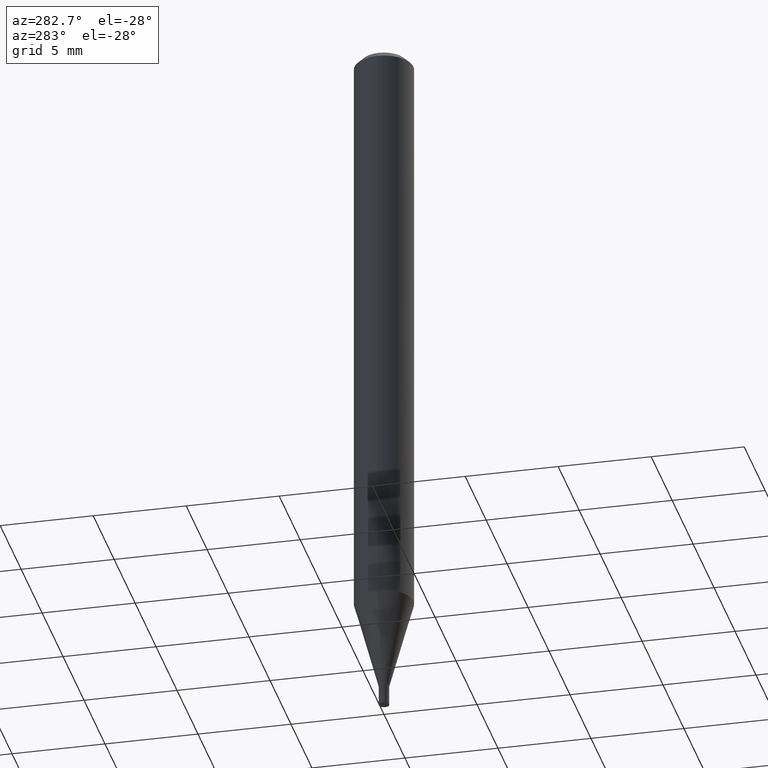
[diagram: clean part render]
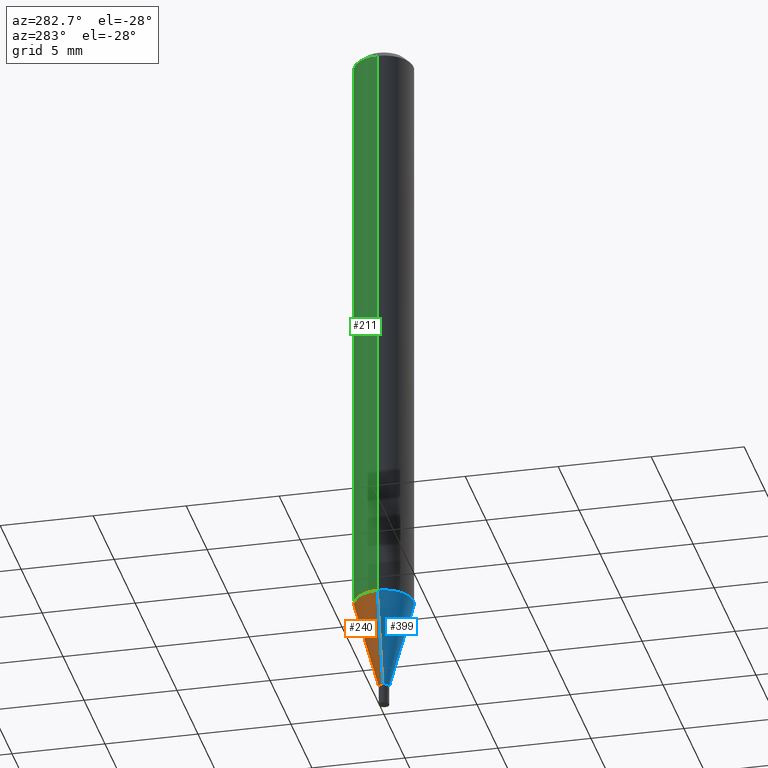
[diagram: same view with three faces highlighted in distinct colors, each labeled with its STEP entity id]
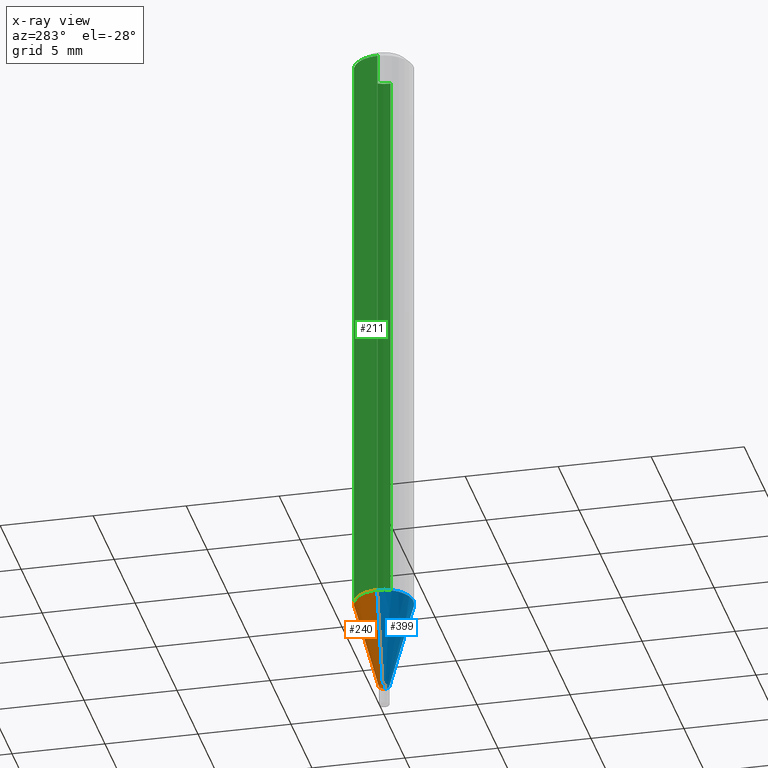
[diagram: x-ray of the same camera — body ghosted, the three highlighted faces saturated]
A machine part, auxiliary view with three faces highlighted in distinct colors.
The next image is the same camera in x-ray (body ghosted, the three faces saturated) — at least one of them is partly hidden behind the body in this view.
Their STEP definitions:

[orange] entity #240 — the highlighted conical surface has half-angle 15 deg.
#13 = VECTOR ( 'NONE', #171, 39.37007874015747433 ) ;
#24 = FACE_OUTER_BOUND ( 'NONE', #284, .T. ) ;
#27 = CARTESIAN_POINT ( 'NONE',  ( -0.01099999999999992130, -5.008928609760852258E-15, -1.457000000000000073 ) ) ;
#50 = CIRCLE ( 'NONE', #330, 0.01099999999999992130 ) ;
#51 = CONICAL_SURFACE ( 'NONE', #118, 0.01099999999999992130, 0.2617993877991500740 ) ;
#74 = ORIENTED_EDGE ( 'NONE', *, *, #415, .T. ) ;
#79 = EDGE_CURVE ( 'NONE', #422, #297, #443, .T. ) ;
#113 = ORIENTED_EDGE ( 'NONE', *, *, #338, .T. ) ;
#114 = VERTEX_POINT ( 'NONE', #306 ) ;
#118 = AXIS2_PLACEMENT_3D ( 'NONE', #169, #308, #281 ) ;
#119 = DIRECTION ( 'NONE',  ( 0.2588190451025213501, 1.565188264969621968E-15, 0.9659258262890682012 ) ) ;
#148 = ORIENTED_EDGE ( 'NONE', *, *, #79, .F. ) ;
#169 = CARTESIAN_POINT ( 'NONE',  ( 3.563048050611744147E-29, -5.087088310694462559E-15, -1.457000000000000073 ) ) ;
#171 = DIRECTION ( 'NONE',  ( -0.2588190451025213501, 5.211531920934551042E-15, 0.9659258262890682012 ) ) ;
#190 = VECTOR ( 'NONE', #119, 39.37007874015747433 ) ;
#204 = LINE ( 'NONE', #27, #13 ) ;
#220 = CARTESIAN_POINT ( 'NONE',  ( 0.01099999999999992130, -5.163900900149011871E-15, -1.457000000000000073 ) ) ;
#226 = ORIENTED_EDGE ( 'NONE', *, *, #375, .F. ) ;
#240 = ADVANCED_FACE ( 'NONE', ( #24 ), #51, .T. ) ;
#244 = AXIS2_PLACEMENT_3D ( 'NONE', #406, #369, #302 ) ;
#251 = DIRECTION ( 'NONE',  ( -2.445468806185136597E-29, 3.491481338843145583E-15, 1.000000000000000000 ) ) ;
#269 = CARTESIAN_POINT ( 'NONE',  ( -0.06250000000000000000, -3.971934234706977480E-15, -1.264799383410203149 ) ) ;
#281 = DIRECTION ( 'NONE',  ( 1.000000000000000000, -6.982962677686295110E-15, 0.000000000000000000 ) ) ;
#284 = EDGE_LOOP ( 'NONE', ( #74, #113, #148, #226 ) ) ;
#297 = VERTEX_POINT ( 'NONE', #269 ) ;
#300 = VERTEX_POINT ( 'NONE', #409 ) ;
#302 = DIRECTION ( 'NONE',  ( 1.000000000000000000, -6.982962677686262766E-15, 0.000000000000000000 ) ) ;
#306 = CARTESIAN_POINT ( 'NONE',  ( -0.01099999999999992130, -4.490431422233914869E-15, -1.457000000000000073 ) ) ;
#308 = DIRECTION ( 'NONE',  ( -2.445468806185136597E-29, 3.491481338843145583E-15, 1.000000000000000000 ) ) ;
#320 = DIRECTION ( 'NONE',  ( 1.000000000000000000, -6.982962677686295110E-15, 0.000000000000000000 ) ) ;
#330 = AXIS2_PLACEMENT_3D ( 'NONE', #436, #251, #320 ) ;
#338 = EDGE_CURVE ( 'NONE', #114, #297, #204, .T. ) ;
#369 = DIRECTION ( 'NONE',  ( -2.445468806185136597E-29, 3.491481338843145583E-15, 1.000000000000000000 ) ) ;
#375 = EDGE_CURVE ( 'NONE', #300, #422, #398, .T. ) ;
#398 = LINE ( 'NONE', #220, #190 ) ;
#406 = CARTESIAN_POINT ( 'NONE',  ( 3.093027438211846075E-29, -4.416023444557040885E-15, -1.264799383410203149 ) ) ;
#409 = CARTESIAN_POINT ( 'NONE',  ( 0.01099999999999992130, -5.163900900149011871E-15, -1.457000000000000073 ) ) ;
#415 = EDGE_CURVE ( 'NONE', #300, #114, #50, .T. ) ;
#422 = VERTEX_POINT ( 'NONE', #466 ) ;
#436 = CARTESIAN_POINT ( 'NONE',  ( 3.563048050611744147E-29, -5.087088310694462559E-15, -1.457000000000000073 ) ) ;
#443 = CIRCLE ( 'NONE', #244, 0.06250000000000000000 ) ;
#466 = CARTESIAN_POINT ( 'NONE',  ( 0.06250000000000000000, -4.852458611912431766E-15, -1.264799383410203149 ) ) ;

[blue] entity #399 — the highlighted conical surface has half-angle 15 deg.
#13 = VECTOR ( 'NONE', #171, 39.37007874015747433 ) ;
#27 = CARTESIAN_POINT ( 'NONE',  ( -0.01099999999999992130, -5.008928609760852258E-15, -1.457000000000000073 ) ) ;
#43 = AXIS2_PLACEMENT_3D ( 'NONE', #196, #134, #261 ) ;
#47 = EDGE_CURVE ( 'NONE', #114, #300, #401, .T. ) ;
#67 = DIRECTION ( 'NONE',  ( 1.000000000000000000, -6.982962677686262766E-15, 0.000000000000000000 ) ) ;
#81 = AXIS2_PLACEMENT_3D ( 'NONE', #379, #108, #67 ) ;
#88 = FACE_OUTER_BOUND ( 'NONE', #155, .T. ) ;
#108 = DIRECTION ( 'NONE',  ( -2.445468806185136597E-29, 3.491481338843145583E-15, 1.000000000000000000 ) ) ;
#114 = VERTEX_POINT ( 'NONE', #306 ) ;
#119 = DIRECTION ( 'NONE',  ( 0.2588190451025213501, 1.565188264969621968E-15, 0.9659258262890682012 ) ) ;
#121 = DIRECTION ( 'NONE',  ( 1.000000000000000000, -6.982962677686295110E-15, 0.000000000000000000 ) ) ;
#134 = DIRECTION ( 'NONE',  ( -2.445468806185136597E-29, 3.491481338843145583E-15, 1.000000000000000000 ) ) ;
#155 = EDGE_LOOP ( 'NONE', ( #386, #396, #181, #437 ) ) ;
#161 = CONICAL_SURFACE ( 'NONE', #234, 0.01099999999999992130, 0.2617993877991500740 ) ;
#171 = DIRECTION ( 'NONE',  ( -0.2588190451025213501, 5.211531920934551042E-15, 0.9659258262890682012 ) ) ;
#181 = ORIENTED_EDGE ( 'NONE', *, *, #375, .T. ) ;
#190 = VECTOR ( 'NONE', #119, 39.37007874015747433 ) ;
#196 = CARTESIAN_POINT ( 'NONE',  ( 3.563048050611744147E-29, -5.087088310694462559E-15, -1.457000000000000073 ) ) ;
#204 = LINE ( 'NONE', #27, #13 ) ;
#220 = CARTESIAN_POINT ( 'NONE',  ( 0.01099999999999992130, -5.163900900149011871E-15, -1.457000000000000073 ) ) ;
#234 = AXIS2_PLACEMENT_3D ( 'NONE', #357, #360, #121 ) ;
#261 = DIRECTION ( 'NONE',  ( 1.000000000000000000, -6.982962677686295110E-15, 0.000000000000000000 ) ) ;
#269 = CARTESIAN_POINT ( 'NONE',  ( -0.06250000000000000000, -3.971934234706977480E-15, -1.264799383410203149 ) ) ;
#274 = CIRCLE ( 'NONE', #81, 0.06250000000000000000 ) ;
#297 = VERTEX_POINT ( 'NONE', #269 ) ;
#300 = VERTEX_POINT ( 'NONE', #409 ) ;
#306 = CARTESIAN_POINT ( 'NONE',  ( -0.01099999999999992130, -4.490431422233914869E-15, -1.457000000000000073 ) ) ;
#327 = EDGE_CURVE ( 'NONE', #297, #422, #274, .T. ) ;
#338 = EDGE_CURVE ( 'NONE', #114, #297, #204, .T. ) ;
#357 = CARTESIAN_POINT ( 'NONE',  ( 3.563048050611744147E-29, -5.087088310694462559E-15, -1.457000000000000073 ) ) ;
#360 = DIRECTION ( 'NONE',  ( -2.445468806185136597E-29, 3.491481338843145583E-15, 1.000000000000000000 ) ) ;
#375 = EDGE_CURVE ( 'NONE', #300, #422, #398, .T. ) ;
#379 = CARTESIAN_POINT ( 'NONE',  ( 3.093027438211846075E-29, -4.416023444557040885E-15, -1.264799383410203149 ) ) ;
#386 = ORIENTED_EDGE ( 'NONE', *, *, #338, .F. ) ;
#396 = ORIENTED_EDGE ( 'NONE', *, *, #47, .T. ) ;
#398 = LINE ( 'NONE', #220, #190 ) ;
#399 = ADVANCED_FACE ( 'NONE', ( #88 ), #161, .T. ) ;
#401 = CIRCLE ( 'NONE', #43, 0.01099999999999992130 ) ;
#409 = CARTESIAN_POINT ( 'NONE',  ( 0.01099999999999992130, -5.163900900149011871E-15, -1.457000000000000073 ) ) ;
#422 = VERTEX_POINT ( 'NONE', #466 ) ;
#437 = ORIENTED_EDGE ( 'NONE', *, *, #327, .F. ) ;
#466 = CARTESIAN_POINT ( 'NONE',  ( 0.06250000000000000000, -4.852458611912431766E-15, -1.264799383410203149 ) ) ;

[green] entity #211 — the highlighted cylindrical surface (edge-blend (fillet) strip) has radius 1.5875 mm, axis along (-0, 0, 1).
#12 = VECTOR ( 'NONE', #323, 39.37007874015748143 ) ;
#23 = FACE_OUTER_BOUND ( 'NONE', #147, .T. ) ;
#29 = DIRECTION ( 'NONE',  ( 1.000000000000000000, -6.982962677686266711E-15, 4.876176775795935793E-29 ) ) ;
#30 = CIRCLE ( 'NONE', #289, 0.06250000000000000000 ) ;
#77 = VERTEX_POINT ( 'NONE', #373 ) ;
#79 = EDGE_CURVE ( 'NONE', #422, #297, #443, .T. ) ;
#104 = DIRECTION ( 'NONE',  ( 1.000000000000000000, -6.982962677686266711E-15, 0.000000000000000000 ) ) ;
#109 = VERTEX_POINT ( 'NONE', #166 ) ;
#123 = CARTESIAN_POINT ( 'NONE',  ( 0.06250000000000000000, -4.364351673553916694E-16, 3.047610484872459871E-30 ) ) ;
#142 = DIRECTION ( 'NONE',  ( -2.445468806185136877E-29, 3.491481338843145188E-15, 1.000000000000000000 ) ) ;
#145 = CYLINDRICAL_SURFACE ( 'NONE', #311, 0.06250000000000000000 ) ;
#147 = EDGE_LOOP ( 'NONE', ( #464, #388, #216, #318 ) ) ;
#166 = CARTESIAN_POINT ( 'NONE',  ( 0.06250000000000000000, -4.888073874380388472E-16, -0.01499999999999999944 ) ) ;
#211 = ADVANCED_FACE ( 'NONE', ( #23 ), #145, .T. ) ;
#216 = ORIENTED_EDGE ( 'NONE', *, *, #279, .F. ) ;
#233 = LINE ( 'NONE', #451, #368 ) ;
#244 = AXIS2_PLACEMENT_3D ( 'NONE', #406, #369, #302 ) ;
#249 = LINE ( 'NONE', #123, #12 ) ;
#252 = EDGE_CURVE ( 'NONE', #297, #77, #233, .T. ) ;
#269 = CARTESIAN_POINT ( 'NONE',  ( -0.06250000000000000000, -3.971934234706977480E-15, -1.264799383410203149 ) ) ;
#276 = DIRECTION ( 'NONE',  ( -2.445468806185136597E-29, 3.491481338843145583E-15, 1.000000000000000000 ) ) ;
#279 = EDGE_CURVE ( 'NONE', #109, #77, #30, .T. ) ;
#289 = AXIS2_PLACEMENT_3D ( 'NONE', #458, #276, #104 ) ;
#297 = VERTEX_POINT ( 'NONE', #269 ) ;
#302 = DIRECTION ( 'NONE',  ( 1.000000000000000000, -6.982962677686262766E-15, 0.000000000000000000 ) ) ;
#311 = AXIS2_PLACEMENT_3D ( 'NONE', #346, #343, #29 ) ;
#318 = ORIENTED_EDGE ( 'NONE', *, *, #365, .F. ) ;
#323 = DIRECTION ( 'NONE',  ( -2.445468806185136877E-29, 3.491481338843145188E-15, 1.000000000000000000 ) ) ;
#343 = DIRECTION ( 'NONE',  ( -2.445468806185136597E-29, 3.491481338843145583E-15, 1.000000000000000000 ) ) ;
#346 = CARTESIAN_POINT ( 'NONE',  ( 0.000000000000000000, 0.000000000000000000, 0.000000000000000000 ) ) ;
#365 = EDGE_CURVE ( 'NONE', #422, #109, #249, .T. ) ;
#368 = VECTOR ( 'NONE', #142, 39.37007874015748143 ) ;
#369 = DIRECTION ( 'NONE',  ( -2.445468806185136597E-29, 3.491481338843145583E-15, 1.000000000000000000 ) ) ;
#373 = CARTESIAN_POINT ( 'NONE',  ( -0.06250000000000000000, -1.790108622469781169E-15, -0.01499999999999999944 ) ) ;
#388 = ORIENTED_EDGE ( 'NONE', *, *, #252, .T. ) ;
#406 = CARTESIAN_POINT ( 'NONE',  ( 3.093027438211846075E-29, -4.416023444557040885E-15, -1.264799383410203149 ) ) ;
#422 = VERTEX_POINT ( 'NONE', #466 ) ;
#443 = CIRCLE ( 'NONE', #244, 0.06250000000000000000 ) ;
#451 = CARTESIAN_POINT ( 'NONE',  ( -0.06250000000000000000, 4.440892098500626162E-16, -3.074334431409316114E-30 ) ) ;
#458 = CARTESIAN_POINT ( 'NONE',  ( 3.668203209277705088E-31, -5.237222008264718399E-17, -0.01499999999999999944 ) ) ;
#464 = ORIENTED_EDGE ( 'NONE', *, *, #79, .T. ) ;
#466 = CARTESIAN_POINT ( 'NONE',  ( 0.06250000000000000000, -4.852458611912431766E-15, -1.264799383410203149 ) ) ;